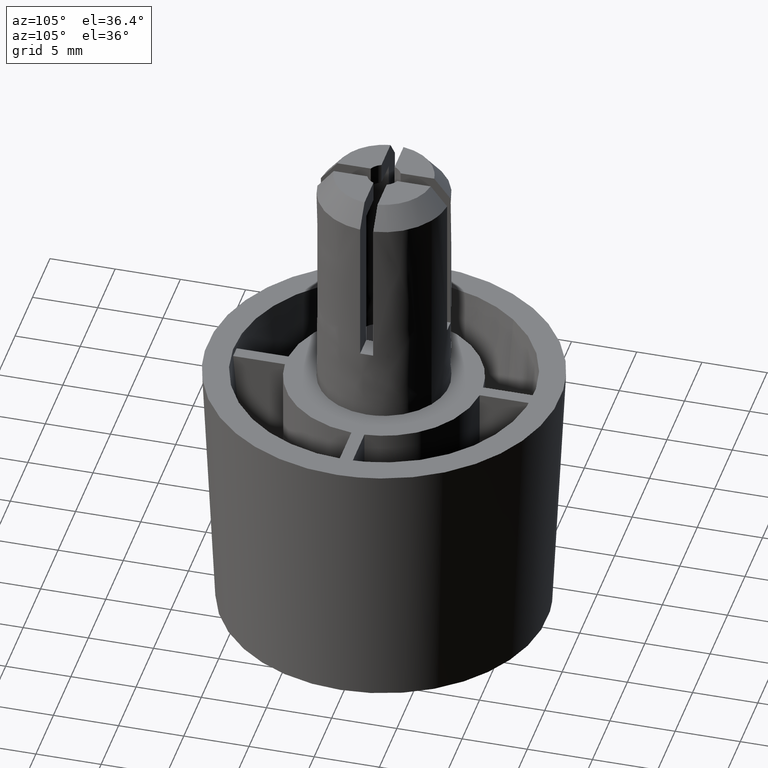
[diagram: clean part render]
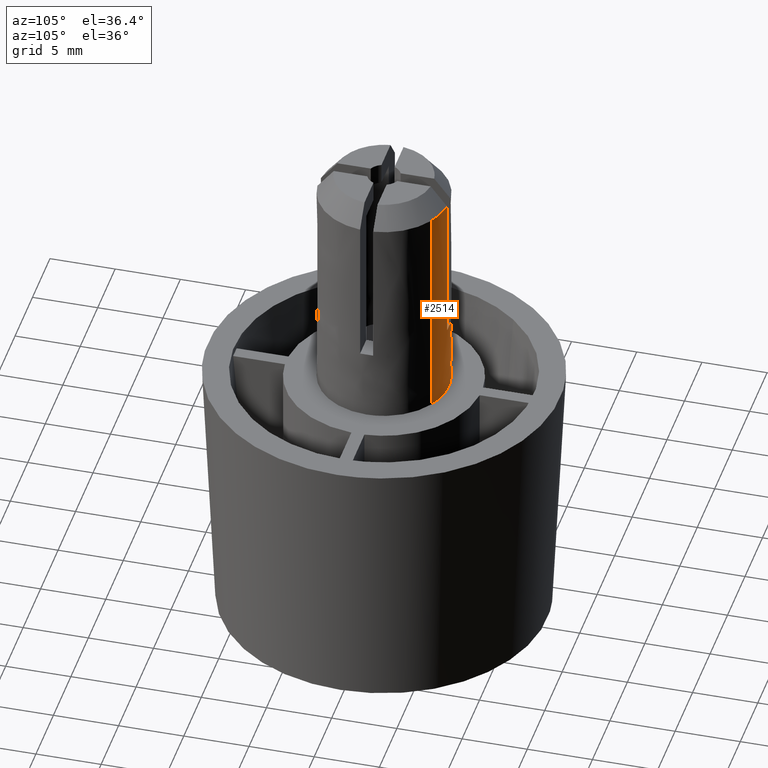
[diagram: same view with one face highlighted and labeled with its STEP entity id]
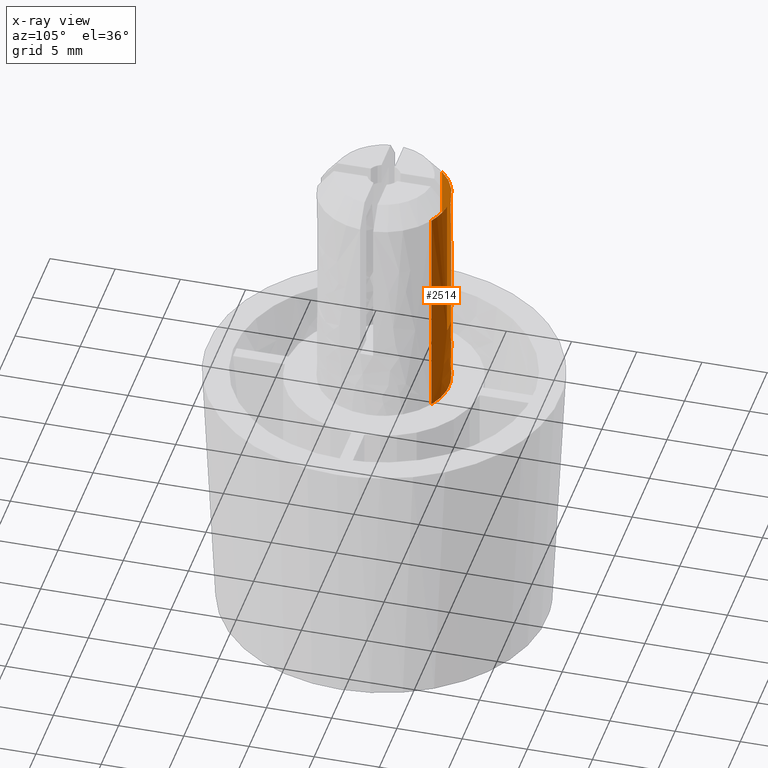
[diagram: x-ray of the same camera — body ghosted, the highlighted face saturated]
A machine part, auxiliary view. The second image highlights one B-rep face of the part: STEP entity #2514.
The next image is the same camera in x-ray: the body ghosted, the highlighted face saturated — about 0% of this face is hidden behind the body in this view.
In plain terms, the highlighted face is a freeform B-spline surface patch.
Its self-contained STEP definition (entity closure, byte-faithful):
#2213=CARTESIAN_POINT('',(2.516769428544956,4.320401791907788,-0.500000000000002));
#2214=VERTEX_POINT('',#2213);
#2230=CARTESIAN_POINT('',(2.516773431216728,4.320399460226053,16.399999999999999));
#2231=VERTEX_POINT('',#2230);
#2232=CARTESIAN_POINT('',(2.516773431216728,4.320399460226053,16.399999999999999));
#2233=CARTESIAN_POINT('',(2.516769428544956,4.320401791907788,-0.500000000000002));
#2234=QUASI_UNIFORM_CURVE('',1,(#2232,#2233),.UNSPECIFIED.,.F.,.U.);
#2235=EDGE_CURVE('',#2231,#2214,#2234,.T.);
#2369=CARTESIAN_POINT('',(-3.611166423462437,3.458247686626484,16.399999999999999));
#2370=VERTEX_POINT('',#2369);
#2384=CARTESIAN_POINT('',(-3.611166475562335,3.458247632222794,-0.500000000000002));
#2385=VERTEX_POINT('',#2384);
#2386=CARTESIAN_POINT('',(-3.611166423462437,3.458247686626484,16.399999999999999));
#2387=CARTESIAN_POINT('',(-3.611166475562335,3.458247632222794,-0.500000000000002));
#2388=QUASI_UNIFORM_CURVE('',1,(#2386,#2387),.UNSPECIFIED.,.F.,.U.);
#2389=EDGE_CURVE('',#2370,#2385,#2388,.T.);
#2424=CARTESIAN_POINT('',(-3.611166228509743,3.458247890199704,16.822500000000009));
#2425=CARTESIAN_POINT('',(-0.886793539426344,6.303088098610593,16.822500000000005));
#2426=CARTESIAN_POINT('',(2.516773431214887,4.320399460227124,16.822500000000002));
#2427=CARTESIAN_POINT('',(-3.611166228509743,3.458247890199704,-0.933062500000002));
#2428=CARTESIAN_POINT('',(-0.886793539426344,6.303088098610593,-0.933062500000002));
#2429=CARTESIAN_POINT('',(2.516773431214887,4.320399460227124,-0.933062500000002));
#2437=(BOUNDED_SURFACE()B_SPLINE_SURFACE(2,1,((#2424,#2427),(#2425,#2428),(#2426,#2429)),.UNSPECIFIED.,.F.,.F.,.U.)B_SPLINE_SURFACE_WITH_KNOTS((3,3),(2,2),(0.0,6.928356665177985),(0.0,17.755562500000011),.UNSPECIFIED.)GEOMETRIC_REPRESENTATION_ITEM()RATIONAL_B_SPLINE_SURFACE(((1.0,1.0),(0.753969696196700,0.753969696196700),(0.921270302782944,0.921270302782944)))REPRESENTATION_ITEM('')SURFACE());
#2438=CARTESIAN_POINT('',(-3.611166475562336,3.458247632222794,-0.500000000000002));
#2439=CARTESIAN_POINT('',(-2.134701530254600,5.0,-0.500000000000000));
#2440=CARTESIAN_POINT('',(0.0,5.0,-0.500000000000000));
#2441=CARTESIAN_POINT('',(1.350139985773285,5.0,-0.500000000000000));
#2442=CARTESIAN_POINT('',(2.516769428544956,4.320401791907788,-0.500000000000002));
#2450=(BOUNDED_CURVE()B_SPLINE_CURVE(2,(#2438,#2439,#2440,#2441,#2442),.UNSPECIFIED.,.F.,.U.)B_SPLINE_CURVE_WITH_KNOTS((3,2,3),(0.121736497674153,0.250000000000000,0.335865339394797),.UNSPECIFIED.)CURVE()GEOMETRIC_REPRESENTATION_ITEM()RATIONAL_B_SPLINE_CURVE((0.853653212795828,0.849729959789984,1.0,0.899402497440594,0.867907704477447))REPRESENTATION_ITEM(''));
#2451=EDGE_CURVE('',#2385,#2214,#2450,.T.);
#2452=ORIENTED_EDGE('',*,*,#2451,.F.);
#2453=ORIENTED_EDGE('',*,*,#2389,.F.);
#2454=CARTESIAN_POINT('',(-0.500000000000000,4.974937185533100,16.399999999999999));
#2455=VERTEX_POINT('',#2454);
#2456=CARTESIAN_POINT('',(-3.611166423462437,3.458247686626484,16.400000000000002));
#2457=CARTESIAN_POINT('',(-2.335351543764690,4.790477414955311,16.400000000000002));
#2458=CARTESIAN_POINT('',(-0.500000000000000,4.974937185533100,16.399999999999999));
#2466=(BOUNDED_CURVE()B_SPLINE_CURVE(2,(#2456,#2457,#2458),.UNSPECIFIED.,.F.,.U.)B_SPLINE_CURVE_WITH_KNOTS((3,3),(0.484840455922206,1.0),.UNSPECIFIED.)CURVE()GEOMETRIC_REPRESENTATION_ITEM()RATIONAL_B_SPLINE_CURVE((0.887240270472552,0.883714603278135,1.0))REPRESENTATION_ITEM(''));
#2467=EDGE_CURVE('',#2370,#2455,#2466,.T.);
#2468=ORIENTED_EDGE('',*,*,#2467,.T.);
#2469=CARTESIAN_POINT('',(-0.500000000000000,4.974937185533100,5.0));
#2470=VERTEX_POINT('',#2469);
#2471=CARTESIAN_POINT('',(-0.500000000000000,4.974937185533100,16.399999999999999));
#2472=CARTESIAN_POINT('',(-0.500000000000000,4.974937185533100,5.0));
#2473=QUASI_UNIFORM_CURVE('',1,(#2471,#2472),.UNSPECIFIED.,.F.,.U.);
#2474=EDGE_CURVE('',#2455,#2470,#2473,.T.);
#2475=ORIENTED_EDGE('',*,*,#2474,.T.);
#2476=CARTESIAN_POINT('',(0.500000000000000,4.974937185533100,5.0));
#2477=VERTEX_POINT('',#2476);
#2478=CARTESIAN_POINT('',(-0.500000000000000,4.974937185533100,5.0));
#2479=CARTESIAN_POINT('',(5.421011E-016,5.025189076296061,4.999999999999999));
#2480=CARTESIAN_POINT('',(0.500000000000001,4.974937185533100,5.0));
#2488=(BOUNDED_CURVE()B_SPLINE_CURVE(2,(#2478,#2479,#2480),.UNSPECIFIED.,.F.,.U.)CURVE()GEOMETRIC_REPRESENTATION_ITEM()QUASI_UNIFORM_CURVE()RATIONAL_B_SPLINE_CURVE((1.0,0.994987437106620,1.0))REPRESENTATION_ITEM(''));
#2489=EDGE_CURVE('',#2470,#2477,#2488,.T.);
#2490=ORIENTED_EDGE('',*,*,#2489,.T.);
#2491=CARTESIAN_POINT('',(0.500000000000000,4.974937185533100,16.399999999999999));
#2492=VERTEX_POINT('',#2491);
#2493=CARTESIAN_POINT('',(0.500000000000000,4.974937185533100,5.0));
#2494=CARTESIAN_POINT('',(0.500000000000000,4.974937185533100,16.399999999999999));
#2495=QUASI_UNIFORM_CURVE('',1,(#2493,#2494),.UNSPECIFIED.,.F.,.U.);
#2496=EDGE_CURVE('',#2477,#2492,#2495,.T.);
#2497=ORIENTED_EDGE('',*,*,#2496,.T.);
#2498=CARTESIAN_POINT('',(0.500000000000001,4.974937185533100,16.399999999999999));
#2499=CARTESIAN_POINT('',(1.579392981677876,4.866454109121933,16.399999999999999));
#2500=CARTESIAN_POINT('',(2.516773431216728,4.320399460226053,16.400000000000006));
#2508=(BOUNDED_CURVE()B_SPLINE_CURVE(2,(#2498,#2499,#2500),.UNSPECIFIED.,.F.,.U.)B_SPLINE_CURVE_WITH_KNOTS((3,3),(0.0,0.318213004027063),.UNSPECIFIED.)CURVE()GEOMETRIC_REPRESENTATION_ITEM()RATIONAL_B_SPLINE_CURVE((1.0,0.928170746634259,0.902055498249585))REPRESENTATION_ITEM(''));
#2509=EDGE_CURVE('',#2492,#2231,#2508,.T.);
#2510=ORIENTED_EDGE('',*,*,#2509,.T.);
#2511=ORIENTED_EDGE('',*,*,#2235,.T.);
#2512=EDGE_LOOP('',(#2452,#2453,#2468,#2475,#2490,#2497,#2510,#2511));
#2513=FACE_OUTER_BOUND('',#2512,.T.);
#2514=ADVANCED_FACE('',(#2513),#2437,.T.);